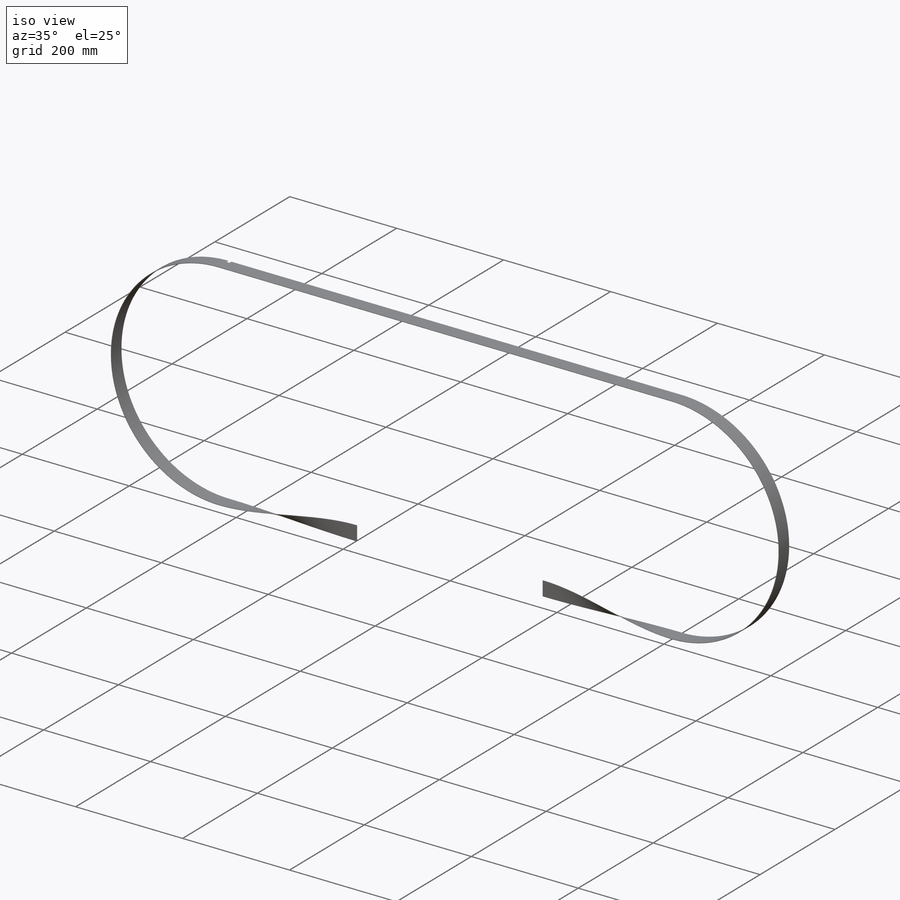
[diagram: iso view]
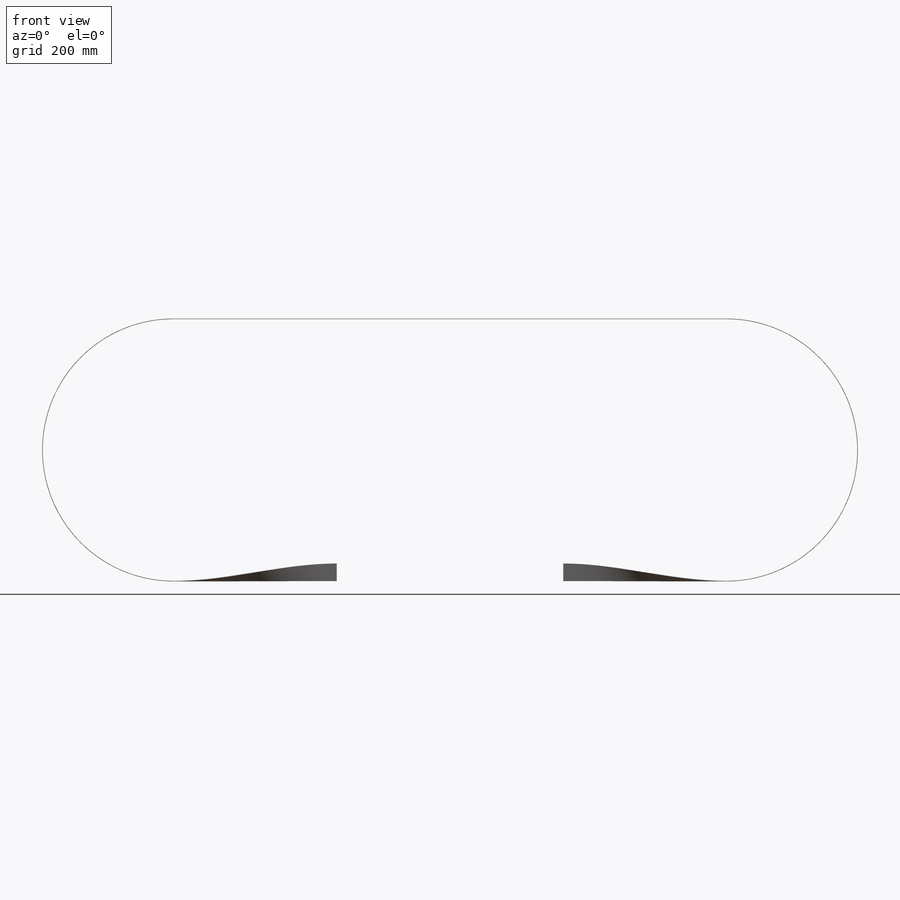
[diagram: front view]
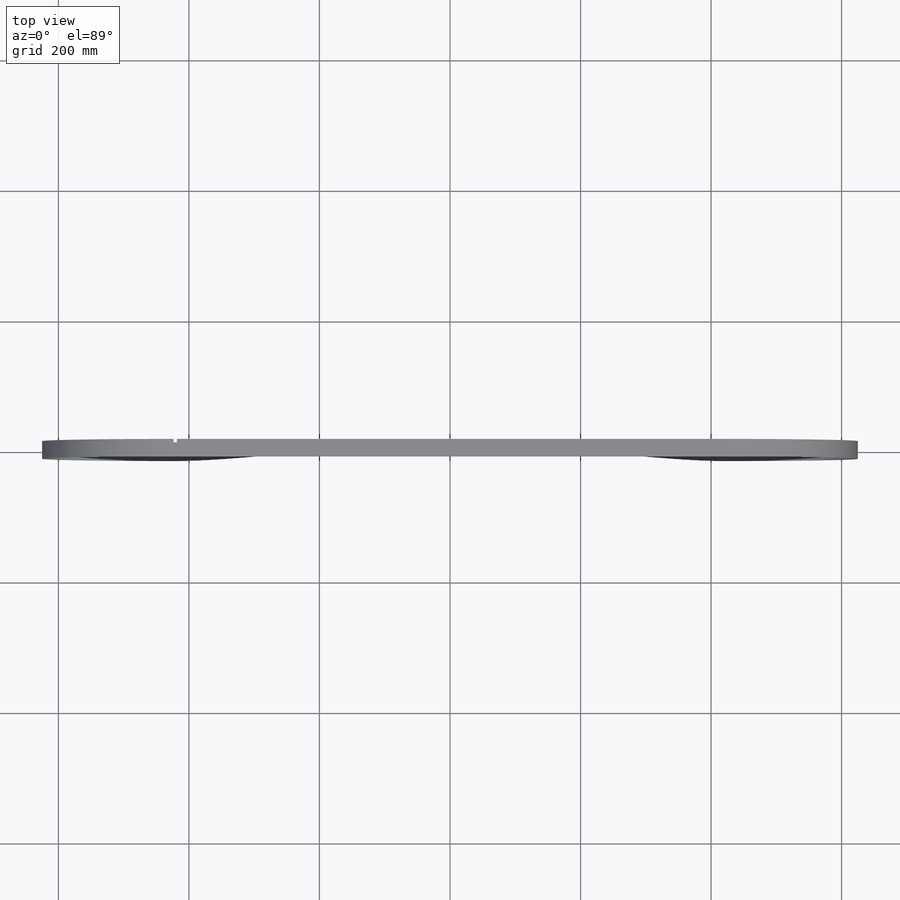
[diagram: top view]
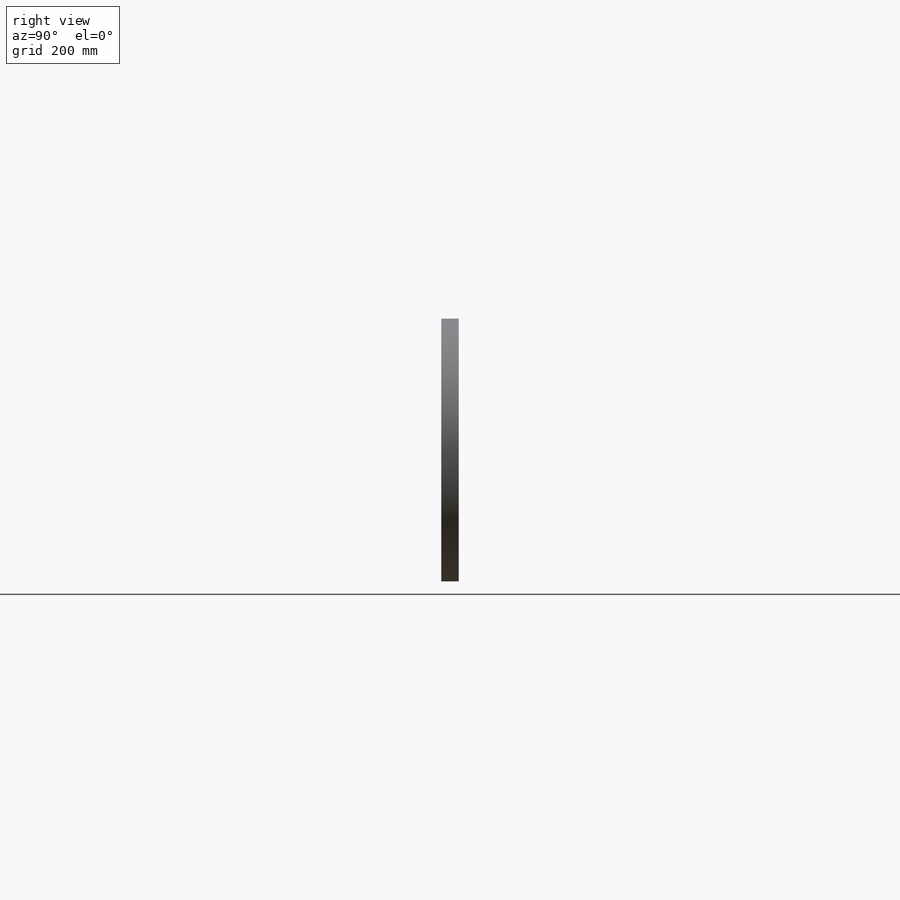
[diagram: right view]
SOLIDWORKS PART (.sldprt)
format: sldprt  version: not decoded by parser v0  size: 896,512 bytes
history: native  units: mm
features: sketch x6, plane x3, sweep x3, material x1, cut_extrude x1 (+12 scaffold rows collapsed)
feature tree (26):
  scaffold x12  (default folders/planes/origin — collapsed)
  material  "Material <nicht festgelegt>"
  sketch  "Skizze1"  dims[c1.D1=200.0mm c1.D2=200.9mm c1.D3=200.9mm c2.D1=847.0mm]
  plane  "Ebene1"
  sketch  "Skizze2"  dims[D1=27.0mm D2=0.9mm]
  sweep  "Austragung1"
  plane  "Ebene2"  Offset=250mm
  plane  "Ebene3"  Offset=250mm
  sketch  "Skizze3"  dims[D1=250.0mm D2=250.0mm]
  sketch  "Skizze4"  dims[c1.D1=0.9mm c1.D2=27.0mm c2.D1=27.0mm c2.D2=0.9mm]
  sketch  "Skizze5"  dims[c1.D1=0.9mm c1.D2=27.0mm c2.D1=0.9mm c2.D2=27.0mm]
  sweep  "Ausformung3"
  sweep  "Ausformung5"
  sketch  "Skizze6"  dims[D1=5.1mm D2=5.1mm D3=5.1mm]
  cut_extrude  "Schnitt-Linear austragen1"  Depth=10mm
decode coverage: 7 of 10 modeling features carry decoded parameters
note: suppression state not decoded; provenance and decode notes live in map.json
